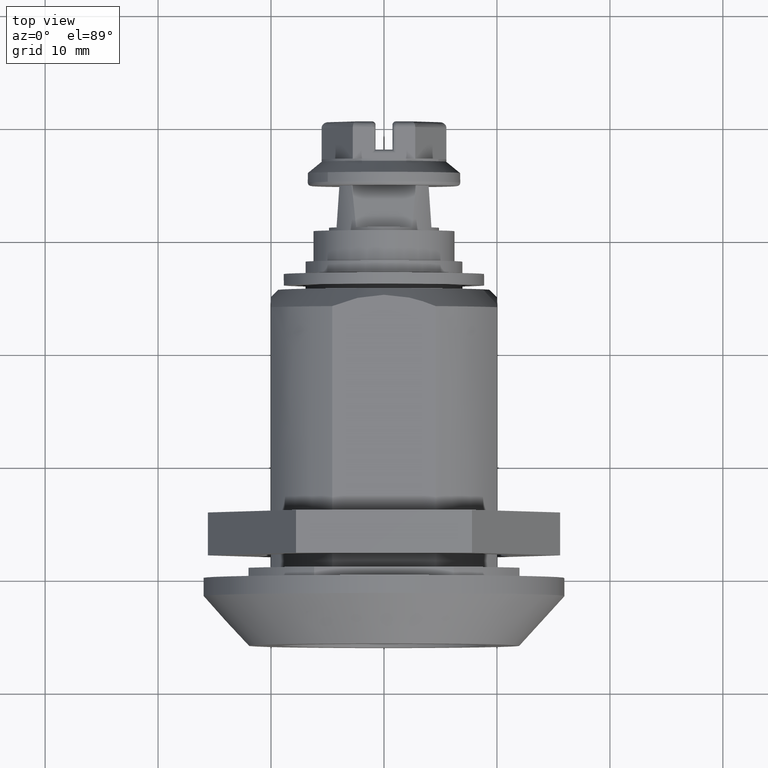
[diagram: clean part render]
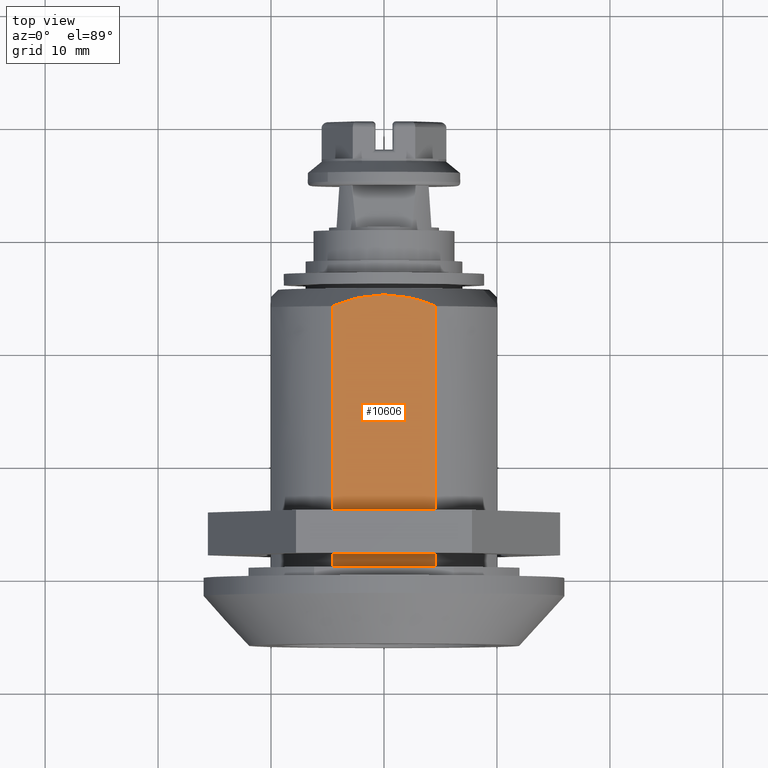
[diagram: same view with one face highlighted and labeled with its STEP entity id]
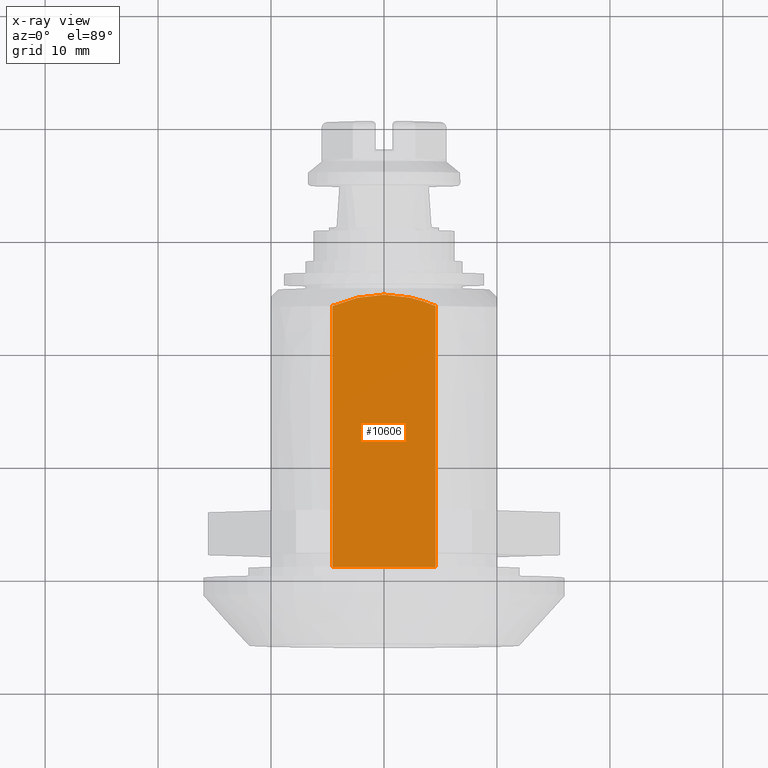
[diagram: x-ray of the same camera — body ghosted, the highlighted face saturated]
A machine part, top view. The second image highlights one B-rep face of the part: STEP entity #10606.
The next image is the same camera in x-ray: the body ghosted, the highlighted face saturated — about 0% of this face is hidden behind the body in this view.
In plain terms, the highlighted face is a freeform B-spline surface patch.
Its self-contained STEP definition (entity closure, byte-faithful):
#9781=CARTESIAN_POINT('',(-4.582575694955748,23.899999999999999,10.000000000000300));
#9782=VERTEX_POINT('',#9781);
#9796=CARTESIAN_POINT('',(4.582575694955452,23.899999999999999,10.000000000000201));
#9797=VERTEX_POINT('',#9796);
#9798=CARTESIAN_POINT('',(4.582575694955452,23.899999999999999,10.000000000000201));
#9799=CARTESIAN_POINT('',(4.221142785279802,24.050572151566971,10.000000000000201));
#9800=CARTESIAN_POINT('',(3.853320081163955,24.189163244700548,10.000000000000210));
#9801=CARTESIAN_POINT('',(3.383455645083318,24.343490450240061,10.000000000000210));
#9802=CARTESIAN_POINT('',(3.288880429502051,24.373433763923519,10.000000000000210));
#9803=CARTESIAN_POINT('',(3.099481006475798,24.431062864242222,10.000000000000220));
#9804=CARTESIAN_POINT('',(2.814803716915671,24.514194326450252,10.000000000000220));
#9805=CARTESIAN_POINT('',(2.528327625842778,24.587020647204959,10.000000000000220));
#9806=CARTESIAN_POINT('',(1.952807784480615,24.717963443719899,10.000000000000229));
#9807=CARTESIAN_POINT('',(1.565700162220288,24.785621554231920,10.000000000000229));
#9808=CARTESIAN_POINT('',(0.979266808087098,24.854042003473019,10.000000000000240));
#9809=CARTESIAN_POINT('',(0.782827900672640,24.871342650727879,10.000000000000240));
#9810=CARTESIAN_POINT('',(0.387938417254553,24.894419311073442,10.000000000000240));
#9811=CARTESIAN_POINT('',(0.188917182397598,24.900170497461581,10.000000000000250));
#9812=CARTESIAN_POINT('',(-0.404291778620175,24.899647338499491,10.000000000000250));
#9813=CARTESIAN_POINT('',(-0.796111570160789,24.875779169755521,10.000000000000259));
#9814=CARTESIAN_POINT('',(-1.572972214567233,24.784395657739289,10.000000000000270));
#9815=CARTESIAN_POINT('',(-1.958016517611242,24.716902528936920,10.000000000000270));
#9816=CARTESIAN_POINT('',(-2.722033489268028,24.542823177205630,10.000000000000281));
#9817=CARTESIAN_POINT('',(-3.101219872420221,24.436187897172360,10.000000000000281));
#9818=CARTESIAN_POINT('',(-3.853445898799877,24.189124950725780,10.000000000000290));
#9819=CARTESIAN_POINT('',(-4.221279446085941,24.050515218977210,10.000000000000300));
#9820=CARTESIAN_POINT('',(-4.582575694955748,23.899999999999999,10.000000000000300));
#9821=B_SPLINE_CURVE_WITH_KNOTS('',3,(#9798,#9799,#9800,#9801,#9802,#9803,#9804,#9805,#9806,#9807,#9808,#9809,#9810,#9811,#9812,#9813,#9814,#9815,#9816,#9817,#9818,#9819,#9820),.UNSPECIFIED.,.F.,.U.,(4,2,2,1,2,2,2,2,2,2,2,4),(0.0,0.125000000000000,0.156250000000000,0.187500000000000,0.250000000000000,0.375000000000000,0.437500000000000,0.500000000000000,0.625000000000000,0.750000000000000,0.875000000000000,1.0),.UNSPECIFIED.);
#9822=EDGE_CURVE('',#9797,#9782,#9821,.T.);
#10334=CARTESIAN_POINT('',(-4.582575694955750,0.800000037997961,10.000000000000300));
#10335=VERTEX_POINT('',#10334);
#10356=CARTESIAN_POINT('',(4.582575694955860,0.800000037997961,10.000000000000201));
#10357=VERTEX_POINT('',#10356);
#10437=CARTESIAN_POINT('',(4.582575694955452,23.899999999999999,10.000000000000201));
#10438=CARTESIAN_POINT('',(4.582575694955860,0.800000037997961,10.000000000000201));
#10439=QUASI_UNIFORM_CURVE('',1,(#10437,#10438),.UNSPECIFIED.,.F.,.U.);
#10440=EDGE_CURVE('',#9797,#10357,#10439,.T.);
#10566=CARTESIAN_POINT('',(-4.582575694955748,23.899999999999999,10.000000000000300));
#10567=CARTESIAN_POINT('',(-4.582575694955750,0.800000037997961,10.000000000000300));
#10568=QUASI_UNIFORM_CURVE('',1,(#10566,#10567),.UNSPECIFIED.,.F.,.U.);
#10569=EDGE_CURVE('',#9782,#10335,#10568,.T.);
#10591=CARTESIAN_POINT('',(5.040374989118104,-0.403794911409390,10.000000000000300));
#10592=CARTESIAN_POINT('',(-5.040375234946510,-0.403794911409389,10.000000000000300));
#10593=CARTESIAN_POINT('',(5.040374989118106,26.103795556096461,10.000000000000300));
#10594=CARTESIAN_POINT('',(-5.040375234946509,26.103795556096461,10.000000000000300));
#10595=B_SPLINE_SURFACE_WITH_KNOTS('',1,1,((#10591,#10593),(#10592,#10594)),.UNSPECIFIED.,.F.,.F.,.U.,(2,2),(2,2),(0.0,10.080750224064611),(0.0,26.507590467505850),.UNSPECIFIED.);
#10596=ORIENTED_EDGE('',*,*,#10569,.T.);
#10597=CARTESIAN_POINT('',(-4.582575694955750,0.800000037997961,10.000000000000300));
#10598=CARTESIAN_POINT('',(4.582575694955860,0.800000037997961,10.000000000000201));
#10599=QUASI_UNIFORM_CURVE('',1,(#10597,#10598),.UNSPECIFIED.,.F.,.U.);
#10600=EDGE_CURVE('',#10335,#10357,#10599,.T.);
#10601=ORIENTED_EDGE('',*,*,#10600,.T.);
#10602=ORIENTED_EDGE('',*,*,#10440,.F.);
#10603=ORIENTED_EDGE('',*,*,#9822,.T.);
#10604=EDGE_LOOP('',(#10596,#10601,#10602,#10603));
#10605=FACE_OUTER_BOUND('',#10604,.T.);
#10606=ADVANCED_FACE('',(#10605),#10595,.F.);